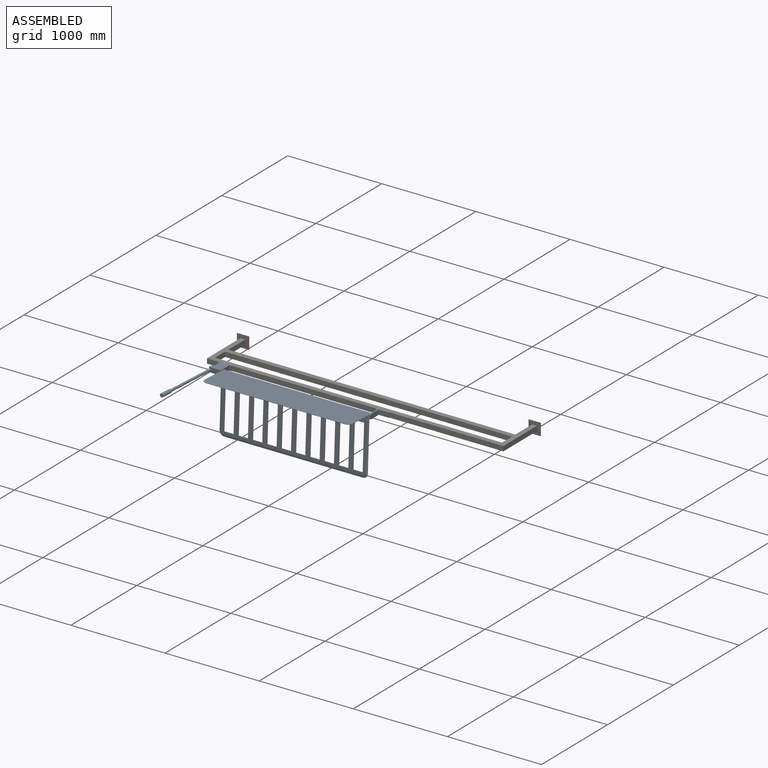
[diagram: assembled view]
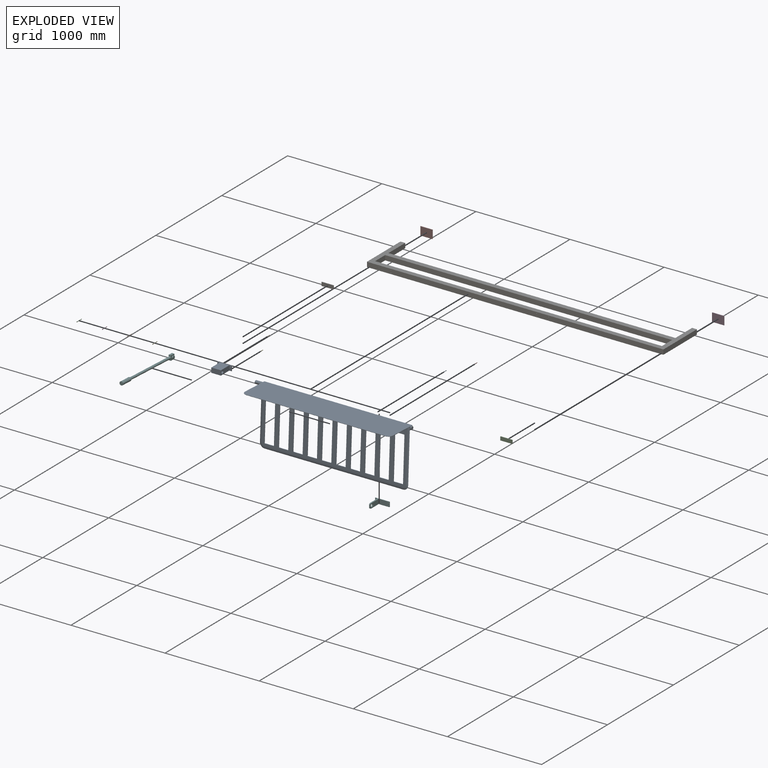
[diagram: exploded view]
GUIDED TOUR — MATED ASSEMBLY (Onshape document e687ba58ba35d8fcf52952bf, AutoMate assembly e687ba58ba35d8fcf52952bf_ee7e8cd8b29e687c3a9b3183_5fe067788b853b7fade614c0_default)

This assembly has 17 components, labeled P0..P16 below (a component is one placed occurrence of a part; the same part can appear more than once), held together by 21 mates. A mate is a constraint between two components; its type names the relative motion it leaves free:
  CYLINDRICAL — leaves both rotation about and translation along the listed axis free,
  FASTENED — locks the two components together rigidly (no relative motion),
  PLANAR — leaves sliding in the plane through the listed point (normal = the listed direction) and rotation about that normal free,
  SLIDER — leaves translation along the listed axis free.
Axis/direction vectors are unit vectors and 'through' points are millimeter coordinates, both in the assembly's world frame.

MATES
  1. FASTENED "Fastened 5": P11 <-> P6, direction (0.000, -1.000, 0.000) through (3124.20, 0.00, 50.80) mm
  2. CYLINDRICAL "Cylindrical 2": P6 <-> P13, axis (0.000, -1.000, 0.000) through (1803.40, -508.00, 12.70) mm
  3. FASTENED "Fastened 4": P10 <-> P11, direction (-1.000, 0.000, 0.000) through (3060.70, 0.00, 50.80) mm
  4. PLANAR "Planar 4": P0 <-> P13, direction (0.000, -1.000, 0.000) through (1803.40, -514.35, 12.70) mm
  5. PLANAR "Planar 3": P15 <-> P13, direction (0.000, 1.000, 0.000) through (1930.40, -514.35, 12.70) mm
  6. PLANAR "Planar 5": P1 <-> P13, direction (0.000, -1.000, 0.000) through (1803.40, -514.35, 38.10) mm
  7. PLANAR "Planar 11": P16 <-> P8, direction (1.000, 0.000, 0.000) through (241.30, -615.95, 25.40) mm
  8. CYLINDRICAL "Cylindrical 3": P8 <-> P16, axis (1.000, 0.000, 0.000) through (241.30, -615.95, 25.40) mm
  9. PLANAR "Planar 1": P6 <-> P8, direction (0.000, -1.000, 0.000) through (1575.67, -508.00, 25.40) mm
  10. CYLINDRICAL "Cylindrical 1": P13 <-> P6, axis (0.000, 1.000, 0.000) through (1930.40, -508.00, 38.10) mm
  11. PLANAR "Planar 10": P5 <-> P8, direction (1.000, 0.000, 0.000) through (139.70, -615.95, 25.40) mm
  12. PLANAR "Planar 7": P9 <-> P8, direction (0.000, -1.000, 0.000) through (127.00, -514.35, 12.70) mm
  13. PLANAR "Planar 6": P12 <-> P8, direction (0.000, -1.000, 0.000) through (254.00, -514.35, 12.70) mm
  14. PLANAR "Planar 9": P3 <-> P8, direction (0.000, -1.000, 0.000) through (254.00, -514.35, 38.10) mm
  15. SLIDER "Slider 1": P6 <-> P8, axis (0.000, -1.000, 0.000) through (254.00, -508.00, 38.10) mm
  16. FASTENED "Fastened 1": P7 <-> P14, direction (0.000, -1.000, 0.000) through (-38.10, 0.00, 50.80) mm
  17. FASTENED "Fastened 6": P5 <-> P16, direction (-1.000, 0.000, 0.000) through (114.30, -615.95, 25.40) mm
  18. PLANAR "Planar 2": P4 <-> P13, direction (0.000, 1.000, 0.000) through (1930.40, -514.35, 38.10) mm
  19. PLANAR "Planar 8": P2 <-> P8, direction (0.000, 1.000, 0.000) through (127.00, -514.35, 38.10) mm
  20. CYLINDRICAL "Cylindrical 4": P5 <-> P8, axis (-1.000, 0.000, 0.000) through (139.70, -615.95, 25.40) mm
  21. FASTENED "Fastened 3": P7 <-> P6, direction (0.000, -1.000, 0.000) through (-38.10, 0.00, -38.10) mm

ASSEMBLY ORDER
  1. P8 — the base component [order verified]
  2. P16 [order verified]
  3. P5 [order verified]
  4. P12 [order verified]
  5. P0 [order verified]
  6. P13 [order verified]
  7. P9 [order verified]
  8. P15 [order verified]
  9. P6 [order verified]
  10. P4 [order verified]
  11. P1 [order verified]
  12. P3 [order verified]
  13. P2 [order verified]
  14. P14 [order verified]
  15. P11 [order verified]
  16. P10 [order verified]
  17. P7 [order verified]
Order-tag legend:
  [order verified] — this step's position reverses a verified removal order: the component was checked to insert without passing through the ones already placed.

Of the 17 components, 12 carry the full construction recipe — the FeatureScript program that regenerates the part's solid from scratch; the rest are supplied as boundary geometry only.
Because this assembly has more than 12 components, the tour below covers the 12 most significant ones individually (every recipe-attached component first, then the largest by part volume), in assembly order; the remaining 5 are summarized together in a grouped section at the end.
Each toured component is shown spotlighted twice — in the assembled view, then in the exploded view, where a leader line traces a displaced component back to its assembled socket (saturated green if recipe-attached, orange if geometry-only; every other component desaturated gray) — followed by its recipe or geometry summary and the mates that hold it.
NOTE — this tour is split across 2 documents so each fits a 32k-token context. This is document 1: the component sections continue in the remaining 1 document, each repeating the header above.
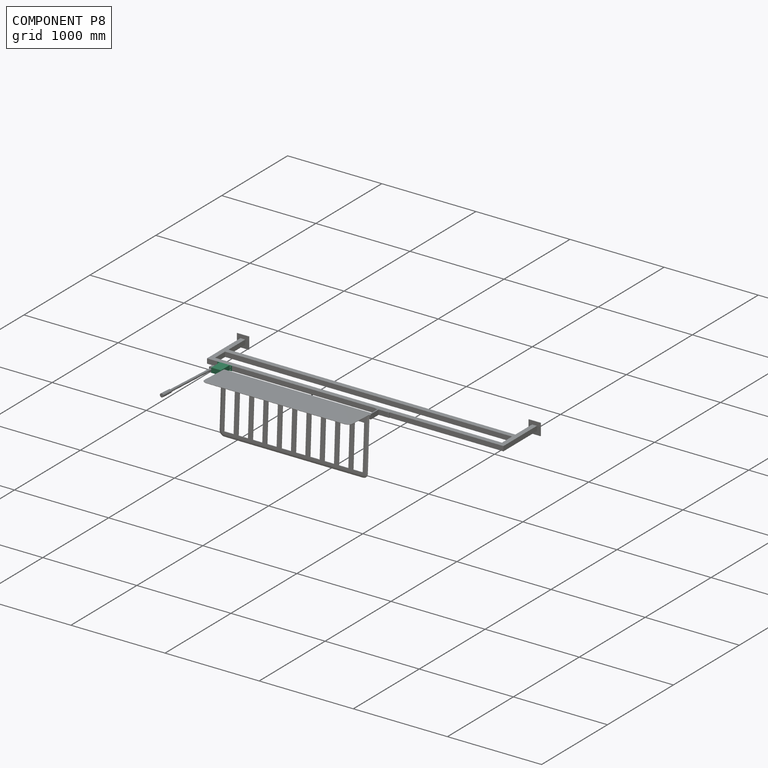
[diagram: component P8 — assembled]
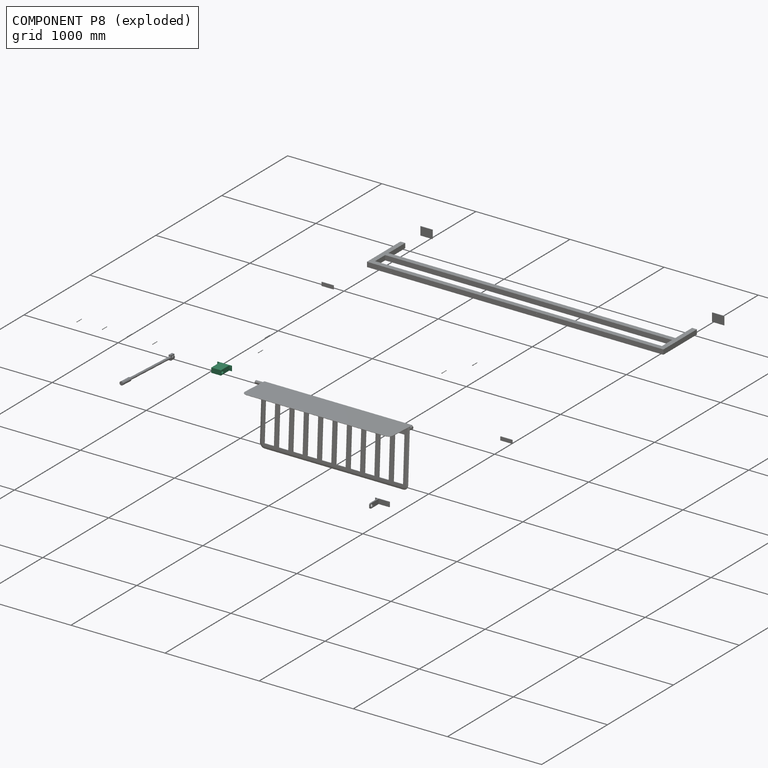
[diagram: component P8 — exploded]
COMPONENT P8 — recipe-attached (CADFS 00274264, mesh-verified: the recipe's output STEP matches this component's geometry to below the mesh-comparison resolution (tessellation chordal tolerance ~0.313 mm)).
Held by: PLANAR mate "Planar 11" to P16; CYLINDRICAL mate "Cylindrical 3" to P16; PLANAR mate "Planar 1" to P6; PLANAR mate "Planar 10" to P5; PLANAR mate "Planar 7" to P9; PLANAR mate "Planar 6" to P12; PLANAR mate "Planar 9" to P3; SLIDER mate "Slider 1" to P6; PLANAR mate "Planar 8" to P2; CYLINDRICAL mate "Cylindrical 4" to P5.
Construction recipe (FeatureScript — the CAD program that rebuilds this solid; sketch coordinates are in the units given by the * unit suffixes, e.g. mm):

FeatureScript 1511;
import(path : "onshape/std/geometry.fs", version : "1511.0");
import(path : "onshape/std/common.fs", version : "1511.0");
const mm = millimeter;
const VERTEX = EntityType.VERTEX;
const EDGE = EntityType.EDGE;
const FACE = EntityType.FACE;
const BODY = EntityType.BODY;
function v(x, y){return vector(x, y);}
function OD(order){return orderDisambiguation(order);}
function OSD(set){return originalSetDisambiguation(set);}
function TD(topology){return topologyDisambiguation(topology);}
function TDD(query){return trueDependencyDisambiguation(query);}
function sQuery(a, b, c) {return sketchEntityQuery(a, b, c);}

annotation { "Feature Type Name" : "Feature", "Feature Type Description" : "" }
export const myFeature = defineFeature(function(context is Context, id is Id, definition is map)
    precondition{}
    {
        {
            var Q0;
            Q0=qCreatedBy(makeId("Front.planeOp"),FACE);
            var sketch = newSketch(context, id + "F0", { "sketchPlane" : qUnion([Q0])});
            skLineSegment(sketch, "E0.bottom", {"start": v(0, 0) * mm, "end": v(152.4, 0) * mm});
            skLineSegment(sketch, "E0.top", {"start": v(0, 50.8) * mm, "end": v(152.4, 50.8) * mm});
            skLineSegment(sketch, "E0.left", {"start": v(0, 0) * mm, "end": v(0, 50.8) * mm});
            skLineSegment(sketch, "E0.right", {"start": v(152.4, 0) * mm, "end": v(152.4, 50.8) * mm});
            skSolve(sketch);
        }
        {
            var Q0;
            Q0=makeQuery(id+"F0.imprint","IMPRINT",FACE,{"disambiguationData":[TD([[makeQuery(id+"F0.imprint","IMPRINT",EDGE,{"derivedFrom":sQuery(id+"F0.wireOp",EDGE,"E0.bottom")}),1.0]])]});
            extrude(context, id + "F1", {"entities" : qUnion([Q0]), "depth" : 6.35 * mm});
        }
        {
            var Q0;
            Q0=makeQuery(id+"F1.opExtrude","CAP_FACE",FACE,{"disambiguationData":[OSD([sQuery(id+"F0.wireOp",EDGE,"E0.bottom"),sQuery(id+"F0.wireOp",EDGE,"E0.top"),sQuery(id+"F0.wireOp",EDGE,"E0.left"),sQuery(id+"F0.wireOp",EDGE,"E0.right")])],"isStart":false});
            var sketch = newSketch(context, id + "F2", { "sketchPlane" : qUnion([Q0])});
            skPoint(sketch, "E1", {"position": v(12.7, 38.1) * mm});
            skPoint(sketch, "E2", {"position": v(12.7, 12.7) * mm});
            skPoint(sketch, "E3", {"position": v(139.7, 38.1) * mm});
            skPoint(sketch, "E4", {"position": v(139.7, 12.7) * mm});
            skSolve(sketch);
        }
        {
            var Q0;
            Q0=sQuery(id+"F2.wireOp",VERTEX,"E1");
            var Q1;
            Q1=sQuery(id+"F2.wireOp",VERTEX,"E2");
            var Q2;
            Q2=sQuery(id+"F2.wireOp",VERTEX,"E3");
            var Q3;
            Q3=sQuery(id+"F2.wireOp",VERTEX,"E4");
            var Q4;
            Q4=makeQuery(id+"F1.opExtrude","SWEPT_BODY",BODY,{"disambiguationData":[OSD([sQuery(id+"F0.wireOp",EDGE,"E0.bottom"),sQuery(id+"F0.wireOp",EDGE,"E0.top"),sQuery(id+"F0.wireOp",EDGE,"E0.left"),sQuery(id+"F0.wireOp",EDGE,"E0.right")])]});
            hole(context, id + "F3", {"style" : HoleStyle.SIMPLE, "endStyle" : HoleEndStyle.THROUGH, "holeDiameter" : 6.35 * mm, "tappedDepth" : 12.7 * mm, "tapClearance" : 3, "locations" : qUnion([Q0, Q1, Q2, Q3]), "scope" : qUnion([Q4])});
        }
        {
            var Q0;
            Q0=makeQuery(id+"F1.opExtrude","CAP_FACE",FACE,{"disambiguationData":[OSD([sQuery(id+"F0.wireOp",EDGE,"E0.bottom"),sQuery(id+"F0.wireOp",EDGE,"E0.top"),sQuery(id+"F0.wireOp",EDGE,"E0.left"),sQuery(id+"F0.wireOp",EDGE,"E0.right")])],"isStart":false});
            var sketch = newSketch(context, id + "F4", { "sketchPlane" : qUnion([Q0])});
            skLineSegment(sketch, "E5.bottom", {"start": v(25.4, 50.8) * mm, "end": v(127, 50.8) * mm});
            skLineSegment(sketch, "E5.top", {"start": v(25.4, 0) * mm, "end": v(127, 0) * mm});
            skLineSegment(sketch, "E5.left", {"start": v(25.4, 50.8) * mm, "end": v(25.4, 0) * mm});
            skLineSegment(sketch, "E5.right", {"start": v(127, 50.8) * mm, "end": v(127, 0) * mm});
            skSolve(sketch);
        }
        {
            var Q0;
            Q0=makeQuery(id+"F4.imprint","IMPRINT",FACE,{"disambiguationData":[TD([[makeQuery(id+"F4.imprint","IMPRINT",EDGE,{"derivedFrom":sQuery(id+"F4.wireOp",EDGE,"E5.bottom")}),-1.0]])]});
            extrude(context, id + "F5", {"entities" : qUnion([Q0]), "operationType" : NewBodyOperationType.ADD, "depth" : 127 * mm});
        }
        {
            var Q0;
            Q0=makeQuery(id+"F5.opExtrude","SWEPT_FACE",FACE,{"disambiguationData":[OSD([sQuery(id+"F4.wireOp",EDGE,"E5.right")])]});
            var sketch = newSketch(context, id + "F6", { "sketchPlane" : qUnion([Q0])});
            skPoint(sketch, "E6", {"position": v(-107.95, 25.4) * mm});
            skSolve(sketch);
        }
        {
            var Q0;
            Q0=sQuery(id+"F6.wireOp",VERTEX,"E6");
            var Q1;
            Q1=makeQuery(id+"F1.opExtrude","SWEPT_BODY",BODY,{"disambiguationData":[OSD([sQuery(id+"F0.wireOp",EDGE,"E0.bottom"),sQuery(id+"F0.wireOp",EDGE,"E0.top"),sQuery(id+"F0.wireOp",EDGE,"E0.left"),sQuery(id+"F0.wireOp",EDGE,"E0.right")])]});
            hole(context, id + "F7", {"style" : HoleStyle.SIMPLE, "endStyle" : HoleEndStyle.BLIND, "holeDiameter" : 31.75 * mm, "holeDepth" : 25.4 * mm, "tappedDepth" : 12.7 * mm, "tapClearance" : 3, "locations" : qUnion([Q0]), "scope" : qUnion([Q1])});
        }
        {
            var Q0;
            Q0=makeQuery(id+"F5.opExtrude","SWEPT_FACE",FACE,{"disambiguationData":[OSD([sQuery(id+"F4.wireOp",EDGE,"E5.left")])]});
            var sketch = newSketch(context, id + "F8", { "sketchPlane" : qUnion([Q0])});
            skPoint(sketch, "E7", {"position": v(107.95, 25.4) * mm});
            skSolve(sketch);
        }
        {
            var Q0;
            Q0=sQuery(id+"F8.wireOp",VERTEX,"E7");
            var Q1;
            Q1=makeQuery(id+"F1.opExtrude","SWEPT_BODY",BODY,{"disambiguationData":[OSD([sQuery(id+"F0.wireOp",EDGE,"E0.bottom"),sQuery(id+"F0.wireOp",EDGE,"E0.top"),sQuery(id+"F0.wireOp",EDGE,"E0.left"),sQuery(id+"F0.wireOp",EDGE,"E0.right")])]});
            hole(context, id + "F9", {"style" : HoleStyle.SIMPLE, "endStyle" : HoleEndStyle.BLIND, "holeDiameter" : 31.75 * mm, "holeDepth" : 25.4 * mm, "tappedDepth" : 12.7 * mm, "tapClearance" : 3, "locations" : qUnion([Q0]), "scope" : qUnion([Q1])});
        }
    });
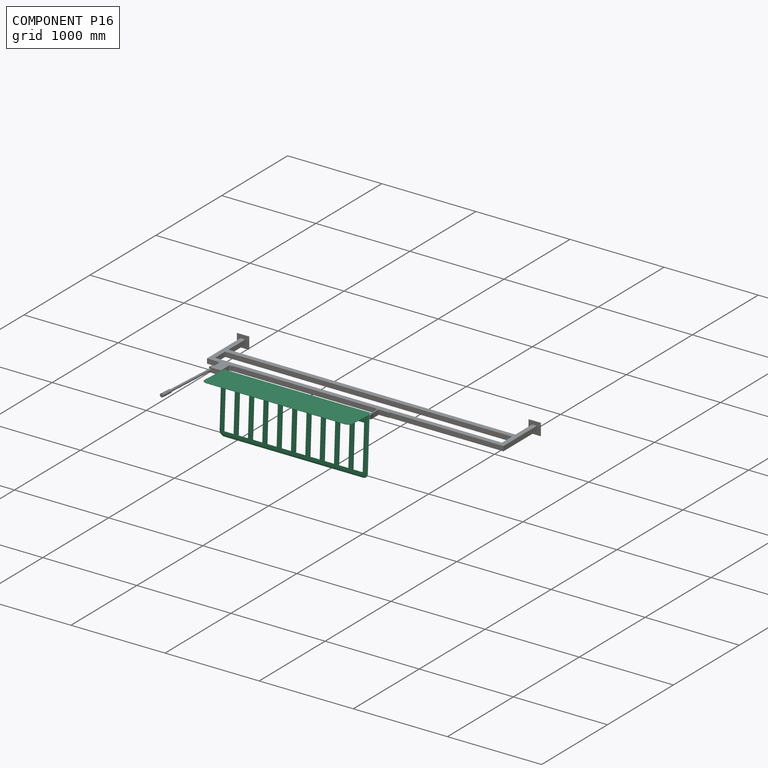
[diagram: component P16 — assembled]
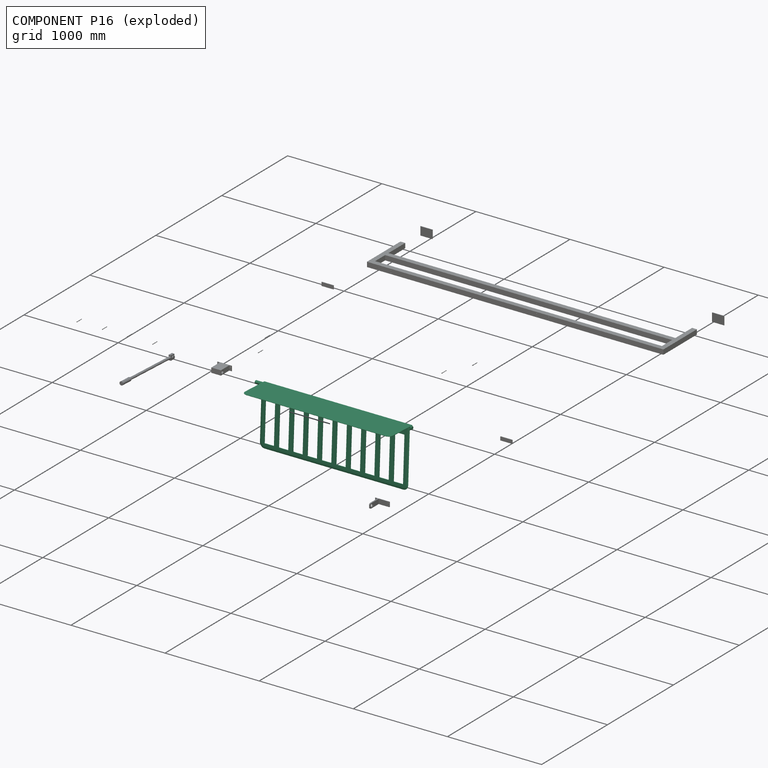
[diagram: component P16 — exploded]
COMPONENT P16 — recipe-attached (CADFS 00274266, mesh-verified: the recipe's output STEP matches this component's geometry to below the mesh-comparison resolution (tessellation chordal tolerance ~2.71 mm)).
Held by: PLANAR mate "Planar 11" to P8; CYLINDRICAL mate "Cylindrical 3" to P8; FASTENED mate "Fastened 6" to P5.
Construction recipe (FeatureScript — the CAD program that rebuilds this solid; sketch coordinates are in the units given by the * unit suffixes, e.g. mm):

FeatureScript 1511;
import(path : "onshape/std/geometry.fs", version : "1511.0");
import(path : "onshape/std/common.fs", version : "1511.0");
const mm = millimeter;
const VERTEX = EntityType.VERTEX;
const EDGE = EntityType.EDGE;
const FACE = EntityType.FACE;
const BODY = EntityType.BODY;
function v(x, y){return vector(x, y);}
function OD(order){return orderDisambiguation(order);}
function OSD(set){return originalSetDisambiguation(set);}
function TD(topology){return topologyDisambiguation(topology);}
function TDD(query){return trueDependencyDisambiguation(query);}
function sQuery(a, b, c) {return sketchEntityQuery(a, b, c);}

annotation { "Feature Type Name" : "Feature", "Feature Type Description" : "" }
export const myFeature = defineFeature(function(context is Context, id is Id, definition is map)
    precondition{}
    {
        {
            var Q0;
            Q0=qCreatedBy(makeId("Front.planeOp"),FACE);
            var sketch = newSketch(context, id + "F0", { "sketchPlane" : qUnion([Q0])});
            skLineSegment(sketch, "E0.bottom", {"start": v(0, 0) * mm, "end": v(609.6, 0) * mm});
            skLineSegment(sketch, "E0.top", {"start": v(0, 6.35) * mm, "end": v(609.6, 6.35) * mm});
            skLineSegment(sketch, "E0.left", {"start": v(0, 0) * mm, "end": v(0, 6.35) * mm});
            skLineSegment(sketch, "E0.right", {"start": v(609.6, 0) * mm, "end": v(609.6, 6.35) * mm});
            skLineSegment(sketch, "E1.bottom", {"start": v(0, 0) * mm, "end": v(6.35, 0) * mm});
            skLineSegment(sketch, "E1.top", {"start": v(0, 304.8) * mm, "end": v(6.35, 304.8) * mm});
            skLineSegment(sketch, "E1.left", {"start": v(0, 0) * mm, "end": v(0, 304.8) * mm});
            skLineSegment(sketch, "E1.right", {"start": v(6.35, 0) * mm, "end": v(6.35, 304.8) * mm});
            skSolve(sketch);
        }
        {
            var Q0;
            {var subQ5=sQuery(id+"F0.wireOp",EDGE,"E1.top");Q0=makeQuery(id+"F0.imprint","IMPRINT",FACE,{"disambiguationData":[TD([[makeQuery(id+"F0.imprint","IMPRINT",EDGE,{"derivedFrom":subQ5}),-1.0]])]});}
            var Q1;
            {var subQ0=sQuery(id+"F0.wireOp",EDGE,"E0.bottom");Q1=makeQuery(id+"F0.imprint","IMPRINT",FACE,{"disambiguationData":[TD([[makeQuery(id+"F0.imprint","IMPRINT",EDGE,{"derivedFrom":subQ0}),1.0]])]});}
            var Q2;
            {var subQ5=sQuery(id+"F0.wireOp",EDGE,"E1.bottom");Q2=makeQuery(id+"F0.imprint","IMPRINT",FACE,{"disambiguationData":[TD([[makeQuery(id+"F0.imprint","IMPRINT",EDGE,{"derivedFrom":subQ5}),1.0]])]});}
            extrude(context, id + "F1", {"entities" : qUnion([Q0, Q1, Q2]), "depth" : 1574.8 * mm});
        }
        {
            var Q0;
            Q0=makeQuery(id+"F1.opExtrude","CAP_FACE",FACE,{"disambiguationData":[OSD([sQuery(id+"F0.wireOp",EDGE,"E0.bottom"),sQuery(id+"F0.wireOp",EDGE,"E0.top"),sQuery(id+"F0.wireOp",EDGE,"E0.right"),sQuery(id+"F0.wireOp",EDGE,"E1.bottom"),sQuery(id+"F0.wireOp",EDGE,"E1.top"),sQuery(id+"F0.wireOp",EDGE,"E1.left"),sQuery(id+"F0.wireOp",EDGE,"E1.right")])],"isStart":false});
            var sketch = newSketch(context, id + "F2", { "sketchPlane" : qUnion([Q0])});
            skLineSegment(sketch, "E2.bottom", {"start": v(0, 0) * mm, "end": v(38.1, 0) * mm});
            skLineSegment(sketch, "E2.top", {"start": v(0, -38.1) * mm, "end": v(38.1, -38.1) * mm});
            skLineSegment(sketch, "E2.left", {"start": v(0, 0) * mm, "end": v(0, -38.1) * mm});
            skLineSegment(sketch, "E2.right", {"start": v(38.1, 0) * mm, "end": v(38.1, -38.1) * mm});
            skSolve(sketch);
        }
        {
            var Q0;
            Q0=makeQuery(id+"F2.imprint","IMPRINT",FACE,{"disambiguationData":[TD([[makeQuery(id+"F2.imprint","IMPRINT",EDGE,{"derivedFrom":sQuery(id+"F2.wireOp",EDGE,"E2.bottom")}),-1.0]])]});
            extrude(context, id + "F3", {"entities" : qUnion([Q0]), "operationType" : NewBodyOperationType.ADD, "oppositeDirection" : true, "depth" : 1574.8 * mm});
        }
        {
            var Q0;
            Q0=makeQuery(id+"F3.boolean.opBoolean","MERGE",FACE,{"derivedFrom":[makeQuery(id+"F1.opExtrude","CAP_FACE",FACE,{"disambiguationData":[OSD([sQuery(id+"F0.wireOp",EDGE,"E0.bottom"),sQuery(id+"F0.wireOp",EDGE,"E0.top"),sQuery(id+"F0.wireOp",EDGE,"E0.right"),sQuery(id+"F0.wireOp",EDGE,"E1.bottom"),sQuery(id+"F0.wireOp",EDGE,"E1.top"),sQuery(id+"F0.wireOp",EDGE,"E1.left"),sQuery(id+"F0.wireOp",EDGE,"E1.right")])],"isStart":false}),makeQuery(id+"F3.opExtrude","CAP_FACE",FACE,{"disambiguationData":[OSD([sQuery(id+"F2.wireOp",EDGE,"TUILDfYx-NHmr-r6Di-cHKC-nHDSRs35YgXG.bottom"),sQuery(id+"F2.wireOp",EDGE,"TUILDfYx-NHmr-r6Di-cHKC-nHDSRs35YgXG.top"),sQuery(id+"F2.wireOp",EDGE,"TUILDfYx-NHmr-r6Di-cHKC-nHDSRs35YgXG.left"),sQuery(id+"F2.wireOp",EDGE,"TUILDfYx-NHmr-r6Di-cHKC-nHDSRs35YgXG.right")])],"isStart":true})]});
            var sketch = newSketch(context, id + "F4", { "sketchPlane" : qUnion([Q0])});
            skPoint(sketch, "E3", {"position": v(19.05, -19.05) * mm});
            skCircle(sketch, "E4", {"center": v(19.05, -19.05) * mm, "radius": 15.88 * mm});
            skSolve(sketch);
        }
        {
            var Q0;
            Q0=makeQuery(id+"F4.imprint","IMPRINT",FACE,{"disambiguationData":[TD([[makeQuery(id+"F4.imprint","IMPRINT",EDGE,{"derivedFrom":sQuery(id+"F4.wireOp",EDGE,"E4")}),1.0]])]});
            extrude(context, id + "F5", {"entities" : qUnion([Q0]), "operationType" : NewBodyOperationType.ADD, "depth" : 76.2 * mm});
        }
        {
            var Q0;
            Q0=makeQuery(id+"F3.boolean.opBoolean","MERGE",FACE,{"derivedFrom":[makeQuery(id+"F1.opExtrude","CAP_FACE",FACE,{"disambiguationData":[OSD([sQuery(id+"F0.wireOp",EDGE,"E0.bottom"),sQuery(id+"F0.wireOp",EDGE,"E0.top"),sQuery(id+"F0.wireOp",EDGE,"E0.right"),sQuery(id+"F0.wireOp",EDGE,"E1.bottom"),sQuery(id+"F0.wireOp",EDGE,"E1.top"),sQuery(id+"F0.wireOp",EDGE,"E1.left"),sQuery(id+"F0.wireOp",EDGE,"E1.right")])],"isStart":true}),makeQuery(id+"F3.opExtrude","CAP_FACE",FACE,{"disambiguationData":[OSD([sQuery(id+"F2.wireOp",EDGE,"TUILDfYx-NHmr-r6Di-cHKC-nHDSRs35YgXG.bottom"),sQuery(id+"F2.wireOp",EDGE,"TUILDfYx-NHmr-r6Di-cHKC-nHDSRs35YgXG.top"),sQuery(id+"F2.wireOp",EDGE,"TUILDfYx-NHmr-r6Di-cHKC-nHDSRs35YgXG.left"),sQuery(id+"F2.wireOp",EDGE,"TUILDfYx-NHmr-r6Di-cHKC-nHDSRs35YgXG.right")])],"isStart":false})]});
            var sketch = newSketch(context, id + "F6", { "sketchPlane" : qUnion([Q0])});
            skCircle(sketch, "E5", {"center": v(-19.05, -19.05) * mm, "radius": 15.88 * mm});
            skSolve(sketch);
        }
        {
            var Q0;
            Q0=makeQuery(id+"F6.imprint","IMPRINT",FACE,{"disambiguationData":[TD([[makeQuery(id+"F6.imprint","IMPRINT",EDGE,{"derivedFrom":sQuery(id+"F6.wireOp",EDGE,"E5")}),1.0]])]});
            extrude(context, id + "F7", {"entities" : qUnion([Q0]), "operationType" : NewBodyOperationType.ADD, "depth" : 12.7 * mm});
        }
        {
            var Q0;
            Q0=makeQuery(id+"F1.opExtrude","SWEPT_FACE",FACE,{"disambiguationData":[OSD([sQuery(id+"F0.wireOp",EDGE,"E0.bottom"),sQuery(id+"F0.wireOp",EDGE,"E1.bottom")])]});
            var sketch = newSketch(context, id + "F8", { "sketchPlane" : qUnion([Q0])});
            skLineSegment(sketch, "E6.bottom", {"start": v(88.9, 1524) * mm, "end": v(558.8, 1524) * mm});
            skLineSegment(sketch, "E6.top", {"start": v(88.9, 1422.4) * mm, "end": v(558.8, 1422.4) * mm});
            skLineSegment(sketch, "E6.left", {"start": v(88.9, 1524) * mm, "end": v(88.9, 1422.4) * mm});
            skLineSegment(sketch, "E6.right", {"start": v(558.8, 1524) * mm, "end": v(558.8, 1422.4) * mm});
            skLineSegment(sketch, "E7.bottom", {"start": v(88.9, 1371.6) * mm, "end": v(558.8, 1371.6) * mm});
            skLineSegment(sketch, "E7.top", {"start": v(88.9, 1270) * mm, "end": v(558.8, 1270) * mm});
            skLineSegment(sketch, "E7.left", {"start": v(88.9, 1371.6) * mm, "end": v(88.9, 1270) * mm});
            skLineSegment(sketch, "E7.right", {"start": v(558.8, 1371.6) * mm, "end": v(558.8, 1270) * mm});
            skLineSegment(sketch, "E8.bottom", {"start": v(88.9, 1219.2) * mm, "end": v(558.8, 1219.2) * mm});
            skLineSegment(sketch, "E8.top", {"start": v(88.9, 1117.6) * mm, "end": v(558.8, 1117.6) * mm});
            skLineSegment(sketch, "E8.left", {"start": v(88.9, 1219.2) * mm, "end": v(88.9, 1117.6) * mm});
            skLineSegment(sketch, "E8.right", {"start": v(558.8, 1219.2) * mm, "end": v(558.8, 1117.6) * mm});
            skLineSegment(sketch, "E9.bottom", {"start": v(558.8, 1066.8) * mm, "end": v(88.9, 1066.8) * mm});
            skLineSegment(sketch, "E9.top", {"start": v(558.8, 965.2) * mm, "end": v(88.9, 965.2) * mm});
            skLineSegment(sketch, "E9.left", {"start": v(558.8, 1066.8) * mm, "end": v(558.8, 965.2) * mm});
            skLineSegment(sketch, "E9.right", {"start": v(88.9, 1066.8) * mm, "end": v(88.9, 965.2) * mm});
            skLineSegment(sketch, "E10.bottom", {"start": v(558.8, 914.4) * mm, "end": v(88.9, 914.4) * mm});
            skLineSegment(sketch, "E10.top", {"start": v(558.8, 812.8) * mm, "end": v(88.9, 812.8) * mm});
            skLineSegment(sketch, "E10.left", {"start": v(558.8, 914.4) * mm, "end": v(558.8, 812.8) * mm});
            skLineSegment(sketch, "E10.right", {"start": v(88.9, 914.4) * mm, "end": v(88.9, 812.8) * mm});
            skLineSegment(sketch, "E11.bottom", {"start": v(558.8, 152.4) * mm, "end": v(88.9, 152.4) * mm});
            skLineSegment(sketch, "E11.top", {"start": v(558.8, 50.8) * mm, "end": v(88.9, 50.8) * mm});
            skLineSegment(sketch, "E11.left", {"start": v(558.8, 152.4) * mm, "end": v(558.8, 50.8) * mm});
            skLineSegment(sketch, "E11.right", {"start": v(88.9, 152.4) * mm, "end": v(88.9, 50.8) * mm});
            skLineSegment(sketch, "E12.bottom", {"start": v(88.9, 203.2) * mm, "end": v(558.8, 203.2) * mm});
            skLineSegment(sketch, "E12.top", {"start": v(88.9, 304.8) * mm, "end": v(558.8, 304.8) * mm});
            skLineSegment(sketch, "E12.left", {"start": v(88.9, 203.2) * mm, "end": v(88.9, 304.8) * mm});
            skLineSegment(sketch, "E12.right", {"start": v(558.8, 203.2) * mm, "end": v(558.8, 304.8) * mm});
            skLineSegment(sketch, "E13.bottom", {"start": v(558.8, 355.6) * mm, "end": v(88.9, 355.6) * mm});
            skLineSegment(sketch, "E13.top", {"start": v(558.8, 457.2) * mm, "end": v(88.9, 457.2) * mm});
            skLineSegment(sketch, "E13.left", {"start": v(558.8, 355.6) * mm, "end": v(558.8, 457.2) * mm});
            skLineSegment(sketch, "E13.right", {"start": v(88.9, 355.6) * mm, "end": v(88.9, 457.2) * mm});
            skLineSegment(sketch, "E14.bottom", {"start": v(558.8, 508) * mm, "end": v(88.9, 508) * mm});
            skLineSegment(sketch, "E14.top", {"start": v(558.8, 609.6) * mm, "end": v(88.9, 609.6) * mm});
            skLineSegment(sketch, "E14.left", {"start": v(558.8, 508) * mm, "end": v(558.8, 609.6) * mm});
            skLineSegment(sketch, "E14.right", {"start": v(88.9, 508) * mm, "end": v(88.9, 609.6) * mm});
            skLineSegment(sketch, "E15.bottom", {"start": v(558.8, 660.4) * mm, "end": v(88.9, 660.4) * mm});
            skLineSegment(sketch, "E15.top", {"start": v(558.8, 762) * mm, "end": v(88.9, 762) * mm});
            skLineSegment(sketch, "E15.left", {"start": v(558.8, 660.4) * mm, "end": v(558.8, 762) * mm});
            skLineSegment(sketch, "E15.right", {"start": v(88.9, 660.4) * mm, "end": v(88.9, 762) * mm});
            skSolve(sketch);
        }
        {
            var Q0;
            Q0=makeQuery(id+"F8.imprint","IMPRINT",FACE,{"disambiguationData":[TD([[makeQuery(id+"F8.imprint","IMPRINT",EDGE,{"derivedFrom":sQuery(id+"F8.wireOp",EDGE,"E6.bottom")}),-1.0]])]});
            var Q1;
            Q1=makeQuery(id+"F8.imprint","IMPRINT",FACE,{"disambiguationData":[TD([[makeQuery(id+"F8.imprint","IMPRINT",EDGE,{"derivedFrom":sQuery(id+"F8.wireOp",EDGE,"E7.bottom")}),-1.0]])]});
            var Q2;
            Q2=makeQuery(id+"F8.imprint","IMPRINT",FACE,{"disambiguationData":[TD([[makeQuery(id+"F8.imprint","IMPRINT",EDGE,{"derivedFrom":sQuery(id+"F8.wireOp",EDGE,"E8.bottom")}),-1.0]])]});
            var Q3;
            Q3=makeQuery(id+"F8.imprint","IMPRINT",FACE,{"disambiguationData":[TD([[makeQuery(id+"F8.imprint","IMPRINT",EDGE,{"derivedFrom":sQuery(id+"F8.wireOp",EDGE,"E9.bottom")}),1.0]])]});
            var Q4;
            Q4=makeQuery(id+"F8.imprint","IMPRINT",FACE,{"disambiguationData":[TD([[makeQuery(id+"F8.imprint","IMPRINT",EDGE,{"derivedFrom":sQuery(id+"F8.wireOp",EDGE,"E10.bottom")}),1.0]])]});
            var Q5;
            Q5=makeQuery(id+"F8.imprint","IMPRINT",FACE,{"disambiguationData":[TD([[makeQuery(id+"F8.imprint","IMPRINT",EDGE,{"derivedFrom":sQuery(id+"F8.wireOp",EDGE,"E15.bottom")}),-1.0]])]});
            var Q6;
            Q6=makeQuery(id+"F8.imprint","IMPRINT",FACE,{"disambiguationData":[TD([[makeQuery(id+"F8.imprint","IMPRINT",EDGE,{"derivedFrom":sQuery(id+"F8.wireOp",EDGE,"E14.bottom")}),-1.0]])]});
            var Q7;
            Q7=makeQuery(id+"F8.imprint","IMPRINT",FACE,{"disambiguationData":[TD([[makeQuery(id+"F8.imprint","IMPRINT",EDGE,{"derivedFrom":sQuery(id+"F8.wireOp",EDGE,"E13.bottom")}),-1.0]])]});
            var Q8;
            Q8=makeQuery(id+"F8.imprint","IMPRINT",FACE,{"disambiguationData":[TD([[makeQuery(id+"F8.imprint","IMPRINT",EDGE,{"derivedFrom":sQuery(id+"F8.wireOp",EDGE,"E12.bottom")}),1.0]])]});
            var Q9;
            Q9=makeQuery(id+"F8.imprint","IMPRINT",FACE,{"disambiguationData":[TD([[makeQuery(id+"F8.imprint","IMPRINT",EDGE,{"derivedFrom":sQuery(id+"F8.wireOp",EDGE,"E11.bottom")}),1.0]])]});
            extrude(context, id + "F9", {"entities" : qUnion([Q0, Q1, Q2, Q3, Q4, Q5, Q6, Q7, Q8, Q9]), "operationType" : NewBodyOperationType.REMOVE, "oppositeDirection" : true, "depth" : 25.4 * mm});
        }
        {
            var Q0;
            Q0=makeQuery(id+"F1.opExtrude","CAP_EDGE",EDGE,{"disambiguationData":[OSD([sQuery(id+"F0.wireOp",EDGE,"E0.right")])],"isStart":true});
            var Q1;
            Q1=makeQuery(id+"F1.opExtrude","CAP_EDGE",EDGE,{"disambiguationData":[OSD([sQuery(id+"F0.wireOp",EDGE,"E0.right")])],"isStart":false});
            var Q2;
            Q2=makeQuery(id+"F1.opExtrude","CAP_EDGE",EDGE,{"disambiguationData":[OSD([sQuery(id+"F0.wireOp",EDGE,"E1.top")])],"isStart":false});
            var Q3;
            Q3=makeQuery(id+"F1.opExtrude","CAP_EDGE",EDGE,{"disambiguationData":[OSD([sQuery(id+"F0.wireOp",EDGE,"E1.top")])],"isStart":true});
            fillet(context, id + "F10", {"entities" : qUnion([Q0, Q1, Q2, Q3]), "radius" : 50.8 * mm, "tangentPropagation" : true, "allowEdgeOverflow" : false});
        }
        {
            var Q0;
            Q0=makeQuery(id+"F1.opExtrude","SWEPT_EDGE",EDGE,{"disambiguationData":[OSD([sQuery(id+"F0.wireOp",EDGE,"E0.top"),sQuery(id+"F0.wireOp",EDGE,"E0.right")])]});
            fillet(context, id + "F11", {"entities" : qUnion([Q0]), "radius" : 50.8 * mm, "tangentPropagation" : true, "allowEdgeOverflow" : false});
        }
        {
            var Q0;
            Q0=makeQuery(id+"F1.opExtrude","SWEPT_EDGE",EDGE,{"disambiguationData":[OSD([sQuery(id+"F0.wireOp",EDGE,"E1.top"),sQuery(id+"F0.wireOp",EDGE,"E1.right")])]});
            var Q1;
            Q1=makeQuery(id+"F1.opExtrude","SWEPT_EDGE",EDGE,{"disambiguationData":[OSD([sQuery(id+"F0.wireOp",EDGE,"E1.top"),sQuery(id+"F0.wireOp",EDGE,"E1.left")])]});
            fillet(context, id + "F12", {"entities" : qUnion([Q0, Q1]), "radius" : 3.17 * mm, "tangentPropagation" : true, "allowEdgeOverflow" : false});
        }
    });
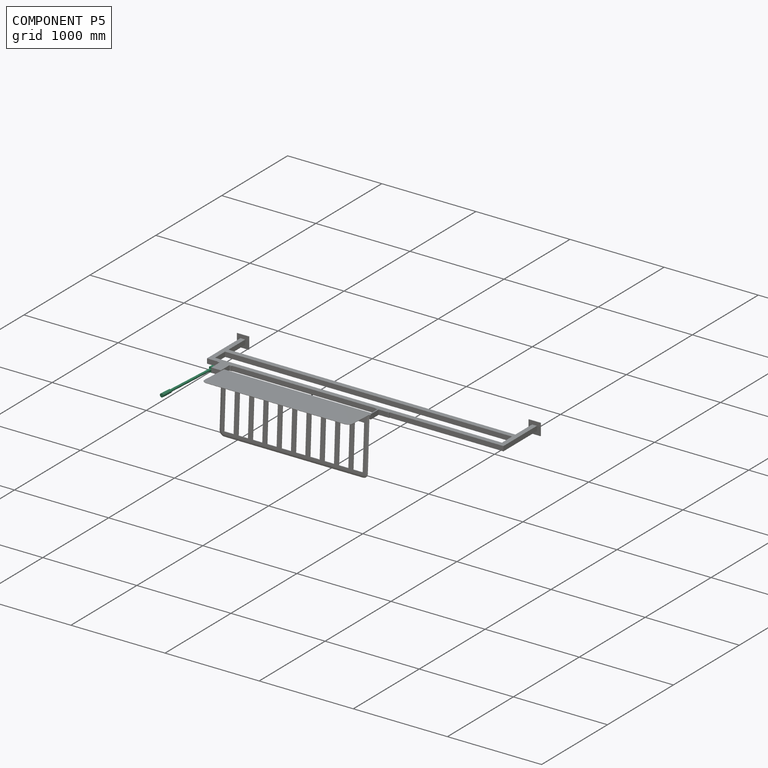
[diagram: component P5 — assembled]
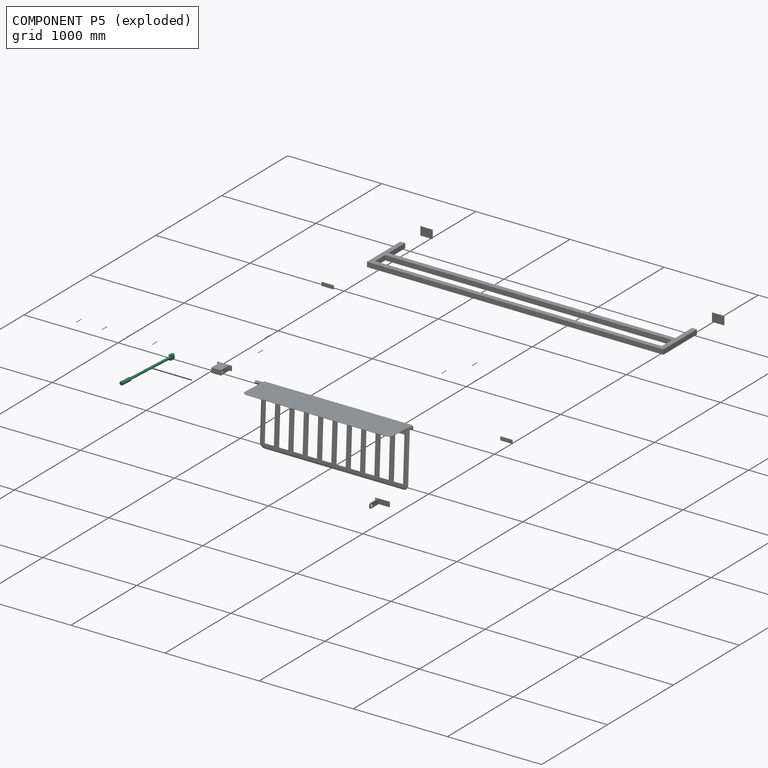
[diagram: component P5 — exploded]
COMPONENT P5 — recipe-attached (CADFS 00274265, mesh-verified: the recipe's output STEP matches this component's geometry to below the mesh-comparison resolution (tessellation chordal tolerance ~1.19 mm)).
Held by: PLANAR mate "Planar 10" to P8; FASTENED mate "Fastened 6" to P16; CYLINDRICAL mate "Cylindrical 4" to P8.
Construction recipe (FeatureScript — the CAD program that rebuilds this solid; sketch coordinates are in the units given by the * unit suffixes, e.g. mm):

FeatureScript 1511;
import(path : "onshape/std/geometry.fs", version : "1511.0");
import(path : "onshape/std/common.fs", version : "1511.0");
const mm = millimeter;
const VERTEX = EntityType.VERTEX;
const EDGE = EntityType.EDGE;
const FACE = EntityType.FACE;
const BODY = EntityType.BODY;
function v(x, y){return vector(x, y);}
function OD(order){return orderDisambiguation(order);}
function OSD(set){return originalSetDisambiguation(set);}
function TD(topology){return topologyDisambiguation(topology);}
function TDD(query){return trueDependencyDisambiguation(query);}
function sQuery(a, b, c) {return sketchEntityQuery(a, b, c);}

annotation { "Feature Type Name" : "Feature", "Feature Type Description" : "" }
export const myFeature = defineFeature(function(context is Context, id is Id, definition is map)
    precondition{}
    {
        {
            var Q0;
            Q0=qCreatedBy(makeId("Front.planeOp"),FACE);
            var sketch = newSketch(context, id + "F0", { "sketchPlane" : qUnion([Q0])});
            skCircle(sketch, "E0", {"center": v(0, 0) * mm, "radius": 12.7 * mm});
            skSolve(sketch);
        }
        {
            var Q0;
            Q0=makeQuery(id+"F0.imprint","IMPRINT",FACE,{"disambiguationData":[TD([[makeQuery(id+"F0.imprint","IMPRINT",EDGE,{"derivedFrom":sQuery(id+"F0.wireOp",EDGE,"E0")}),1.0]])]});
            extrude(context, id + "F1", {"entities" : qUnion([Q0]), "depth" : 609.6 * mm});
        }
        {
            var Q0;
            Q0=makeQuery(id+"F1.opExtrude","CAP_FACE",FACE,{"disambiguationData":[OSD([sQuery(id+"F0.wireOp",EDGE,"E0")])],"isStart":false});
            var sketch = newSketch(context, id + "F2", { "sketchPlane" : qUnion([Q0])});
            skCircle(sketch, "E1", {"center": v(0, 0) * mm, "radius": 19.05 * mm});
            skSolve(sketch);
        }
        {
            var Q0;
            Q0=makeQuery(id+"F2.imprint","IMPRINT",FACE,{"disambiguationData":[TD([[makeQuery(id+"F2.imprint","IMPRINT",EDGE,{"derivedFrom":sQuery(id+"F2.wireOp",EDGE,"E1")}),1.0]])]});
            var Q1;
            Q1=makeQuery(id+"F2.imprint","IMPRINT",FACE,{"disambiguationData":[TD([[makeQuery(id+"F2.imprint","IMPRINT",EDGE,{"derivedFrom":makeQuery(id+"F1.opExtrude","CAP_EDGE",EDGE,{"disambiguationData":[OSD([sQuery(id+"F0.wireOp",EDGE,"E0")])],"isStart":false})}),1.0]])]});
            extrude(context, id + "F3", {"entities" : qUnion([Q0, Q1]), "operationType" : NewBodyOperationType.ADD, "depth" : 127 * mm});
        }
        {
            var Q0;
            Q0=qCreatedBy(makeId("Right.planeOp"),FACE);
            var sketch = newSketch(context, id + "F4", { "sketchPlane" : qUnion([Q0])});
            skLineSegment(sketch, "E2.bottom", {"start": v(0, -25.4) * mm, "end": v(50.8, -25.4) * mm});
            skLineSegment(sketch, "E2.top", {"start": v(0, 25.4) * mm, "end": v(50.8, 25.4) * mm});
            skLineSegment(sketch, "E2.left", {"start": v(0, -25.4) * mm, "end": v(0, 25.4) * mm});
            skLineSegment(sketch, "E2.right", {"start": v(50.8, -25.4) * mm, "end": v(50.8, 25.4) * mm});
            skSolve(sketch);
        }
        {
            var Q0;
            Q0=makeQuery(id+"F4.imprint","IMPRINT",FACE,{"disambiguationData":[TD([[makeQuery(id+"F4.imprint","IMPRINT",EDGE,{"derivedFrom":sQuery(id+"F4.wireOp",EDGE,"E2.bottom")}),1.0]])]});
            extrude(context, id + "F5", {"entities" : qUnion([Q0]), "operationType" : NewBodyOperationType.ADD, "endBound" : BoundingType.SYMMETRIC, "depth" : 25.4 * mm});
        }
        {
            var Q0;
            Q0=makeQuery(id+"F5.opExtrude","CAP_FACE",FACE,{"disambiguationData":[OSD([sQuery(id+"F4.wireOp",EDGE,"E2.bottom"),sQuery(id+"F4.wireOp",EDGE,"E2.top"),sQuery(id+"F4.wireOp",EDGE,"E2.left"),sQuery(id+"F4.wireOp",EDGE,"E2.right")])],"isStart":true});
            var sketch = newSketch(context, id + "F6", { "sketchPlane" : qUnion([Q0])});
            skCircle(sketch, "E3", {"center": v(-25.4, 0) * mm, "radius": 15.88 * mm});
            skSolve(sketch);
        }
        {
            var Q0;
            Q0=makeQuery(id+"F6.imprint","IMPRINT",FACE,{"disambiguationData":[TD([[makeQuery(id+"F6.imprint","IMPRINT",EDGE,{"derivedFrom":sQuery(id+"F6.wireOp",EDGE,"E3")}),1.0]])]});
            extrude(context, id + "F7", {"entities" : qUnion([Q0]), "operationType" : NewBodyOperationType.ADD, "depth" : 12.7 * mm});
        }
    });
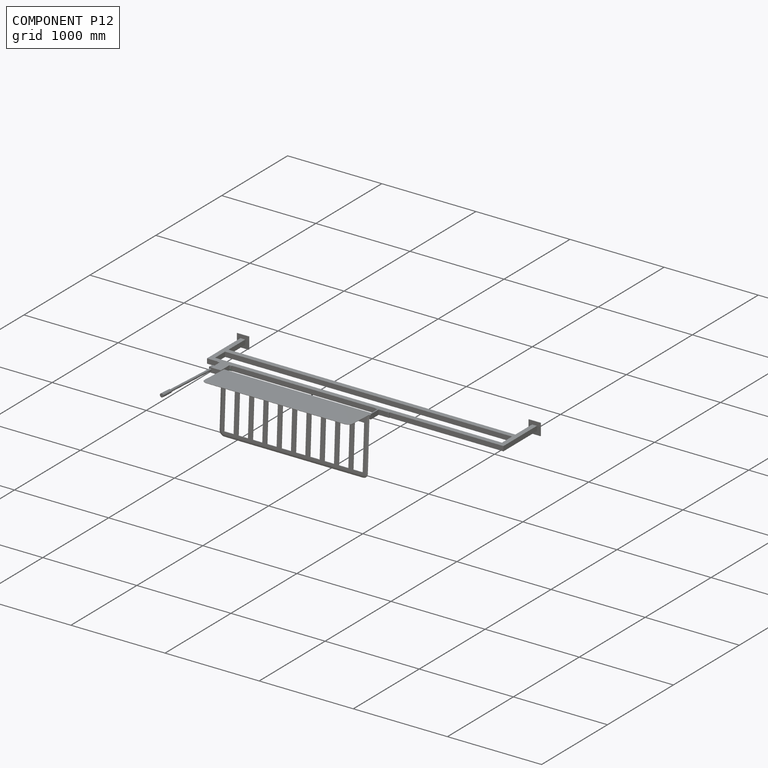
[diagram: component P12 — assembled]
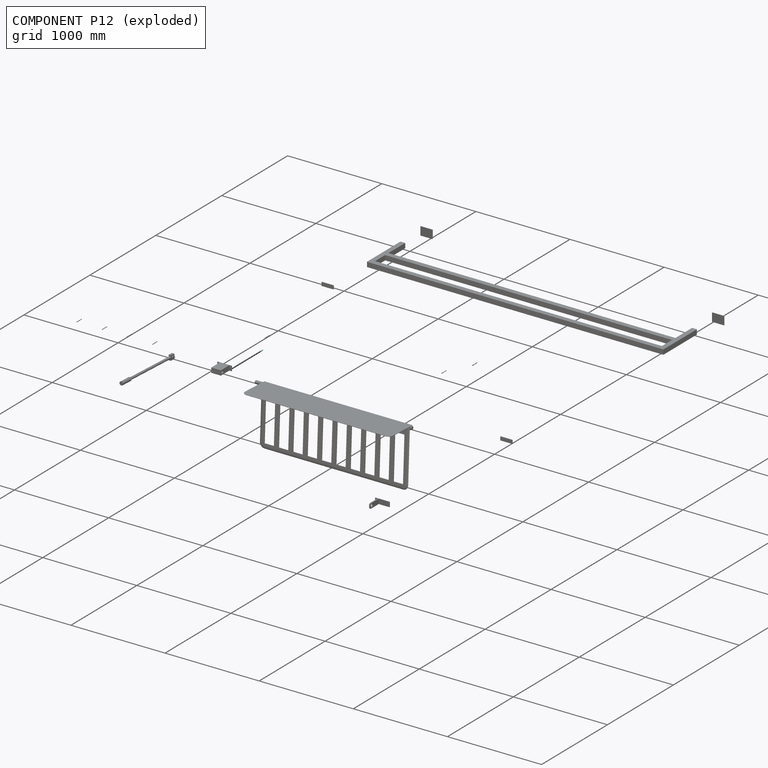
[diagram: component P12 — exploded]
COMPONENT P12 — same part as P0 (CADFS 00274267); its construction recipe is shown at P0.
Held by: PLANAR mate "Planar 6" to P8.
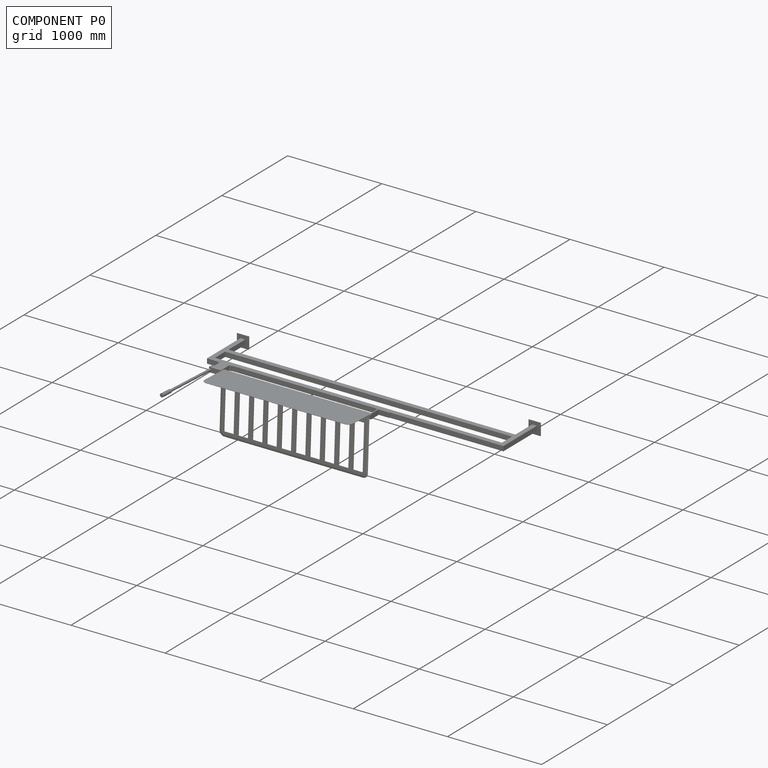
[diagram: component P0 — assembled]
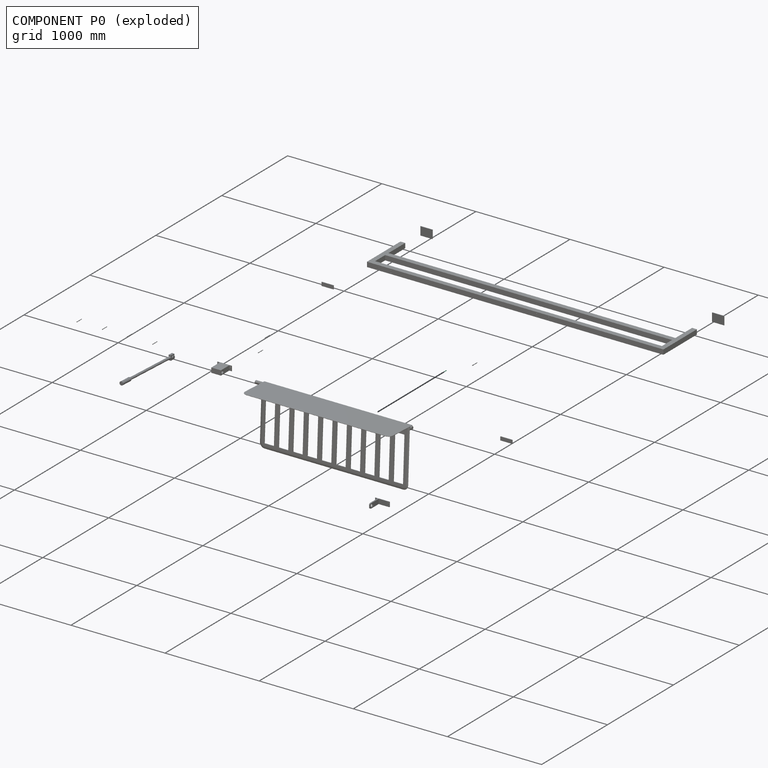
[diagram: component P0 — exploded]
COMPONENT P0 — recipe-attached (CADFS 00274267, mesh-verified: the recipe's output STEP matches this component's geometry to below the mesh-comparison resolution (tessellation chordal tolerance ~0.106 mm)).
Held by: PLANAR mate "Planar 4" to P13.
Construction recipe (FeatureScript — the CAD program that rebuilds this solid; sketch coordinates are in the units given by the * unit suffixes, e.g. mm):

FeatureScript 1511;
import(path : "onshape/std/geometry.fs", version : "1511.0");
import(path : "onshape/std/common.fs", version : "1511.0");
const mm = millimeter;
const VERTEX = EntityType.VERTEX;
const EDGE = EntityType.EDGE;
const FACE = EntityType.FACE;
const BODY = EntityType.BODY;
function v(x, y){return vector(x, y);}
function OD(order){return orderDisambiguation(order);}
function OSD(set){return originalSetDisambiguation(set);}
function TD(topology){return topologyDisambiguation(topology);}
function TDD(query){return trueDependencyDisambiguation(query);}
function sQuery(a, b, c) {return sketchEntityQuery(a, b, c);}

annotation { "Feature Type Name" : "Feature", "Feature Type Description" : "" }
export const myFeature = defineFeature(function(context is Context, id is Id, definition is map)
    precondition{}
    {
        {
            var Q0;
            Q0=qCreatedBy(makeId("Front.planeOp"),FACE);
            var sketch = newSketch(context, id + "F0", { "sketchPlane" : qUnion([Q0])});
            skCircle(sketch, "E0", {"center": v(0, 0) * mm, "radius": 3.18 * mm});
            skCircle(sketch, "E1.cCircle", {"center": v(0, 0) * mm, "radius": 3.81 * mm, "construction": true});
            skLineSegment(sketch, "E1.0", {"start": v(-3.81, -2.2) * mm, "end": v(-3.81, 2.2) * mm});
            skLineSegment(sketch, "E1.1", {"start": v(-3.81, 2.2) * mm, "end": v(0, 4.4) * mm});
            skLineSegment(sketch, "E1.2", {"start": v(0, 4.4) * mm, "end": v(3.8, 2.2) * mm});
            skLineSegment(sketch, "E1.3", {"start": v(3.8, 2.2) * mm, "end": v(3.81, -2.2) * mm});
            skLineSegment(sketch, "E1.4", {"start": v(3.8, -2.2) * mm, "end": v(0, -4.4) * mm});
            skLineSegment(sketch, "E1.5", {"start": v(0, -4.4) * mm, "end": v(-3.81, -2.2) * mm});
            skPoint(sketch, "E1.0.midPoint", {"position": v(-3.81, 0) * mm});
            skSolve(sketch);
        }
        {
            var Q0;
            Q0=makeQuery(id+"F0.imprint","IMPRINT",FACE,{"disambiguationData":[TD([[makeQuery(id+"F0.imprint","IMPRINT",EDGE,{"derivedFrom":sQuery(id+"F0.wireOp",EDGE,"E0")}),1.0]])]});
            extrude(context, id + "F1", {"entities" : qUnion([Q0]), "depth" : 63.5 * mm});
        }
        {
            var Q0;
            Q0 = qSketchRegion(id + "F0", true);
            var Q1;
            Q1=makeQuery(id+"F1.opExtrude","CAP_FACE",FACE,{"disambiguationData":[OSD([sQuery(id+"F0.wireOp",EDGE,"E0")])],"isStart":true});
            extrude(context, id + "F2", {"entities" : qUnion([Q0, Q1]), "operationType" : NewBodyOperationType.ADD, "oppositeDirection" : true, "depth" : 6.35 * mm});
        }
    });
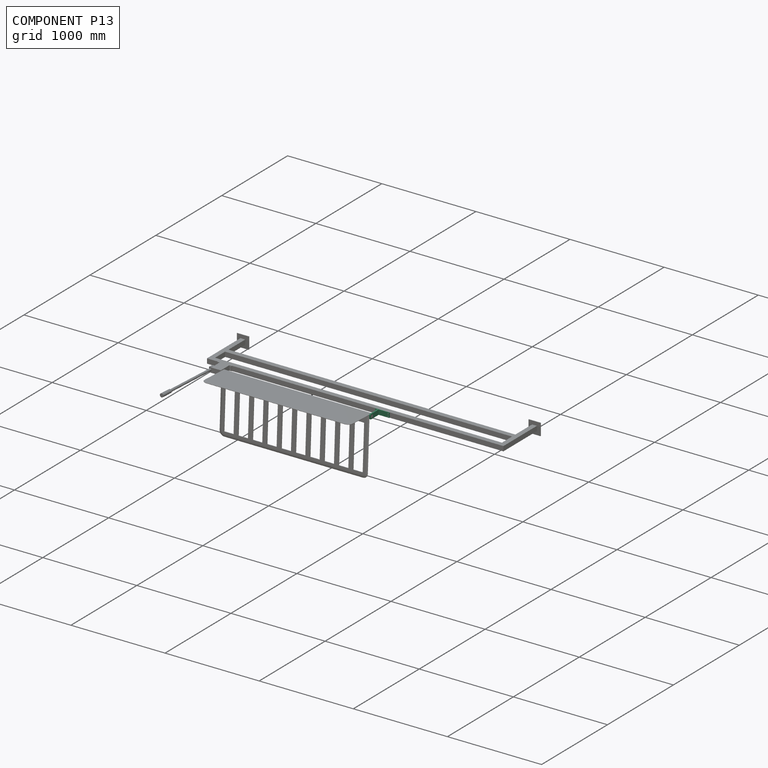
[diagram: component P13 — assembled]
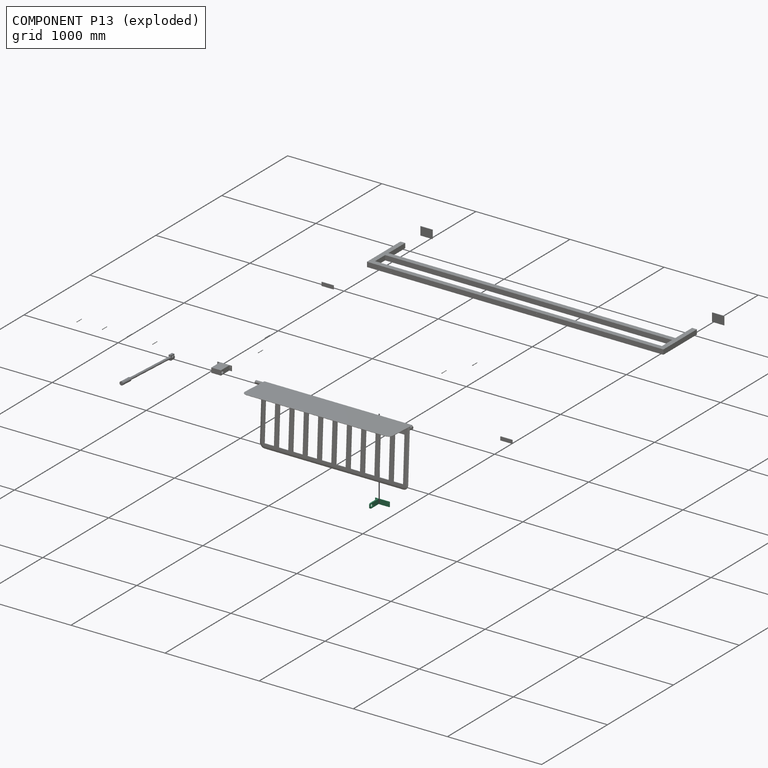
[diagram: component P13 — exploded]
COMPONENT P13 — recipe-attached (CADFS 00274263, mesh-verified: the recipe's output STEP matches this component's geometry to below the mesh-comparison resolution (tessellation chordal tolerance ~0.313 mm)).
Held by: CYLINDRICAL mate "Cylindrical 2" to P6; PLANAR mate "Planar 4" to P0; PLANAR mate "Planar 3" to P15; PLANAR mate "Planar 5" to P1; CYLINDRICAL mate "Cylindrical 1" to P6; PLANAR mate "Planar 2" to P4.
Construction recipe (FeatureScript — the CAD program that rebuilds this solid; sketch coordinates are in the units given by the * unit suffixes, e.g. mm):

FeatureScript 1511;
import(path : "onshape/std/geometry.fs", version : "1511.0");
import(path : "onshape/std/common.fs", version : "1511.0");
const mm = millimeter;
const VERTEX = EntityType.VERTEX;
const EDGE = EntityType.EDGE;
const FACE = EntityType.FACE;
const BODY = EntityType.BODY;
function v(x, y){return vector(x, y);}
function OD(order){return orderDisambiguation(order);}
function OSD(set){return originalSetDisambiguation(set);}
function TD(topology){return topologyDisambiguation(topology);}
function TDD(query){return trueDependencyDisambiguation(query);}
function sQuery(a, b, c) {return sketchEntityQuery(a, b, c);}

annotation { "Feature Type Name" : "Feature", "Feature Type Description" : "" }
export const myFeature = defineFeature(function(context is Context, id is Id, definition is map)
    precondition{}
    {
        {
            var Q0;
            Q0=qCreatedBy(makeId("Front.planeOp"),FACE);
            var sketch = newSketch(context, id + "F0", { "sketchPlane" : qUnion([Q0])});
            skLineSegment(sketch, "E0.bottom", {"start": v(0, 0) * mm, "end": v(152.4, 0) * mm});
            skLineSegment(sketch, "E0.top", {"start": v(0, 50.8) * mm, "end": v(152.4, 50.8) * mm});
            skLineSegment(sketch, "E0.left", {"start": v(0, 0) * mm, "end": v(0, 50.8) * mm});
            skLineSegment(sketch, "E0.right", {"start": v(152.4, 0) * mm, "end": v(152.4, 50.8) * mm});
            skSolve(sketch);
        }
        {
            var Q0;
            Q0=makeQuery(id+"F0.imprint","IMPRINT",FACE,{"disambiguationData":[TD([[makeQuery(id+"F0.imprint","IMPRINT",EDGE,{"derivedFrom":sQuery(id+"F0.wireOp",EDGE,"E0.bottom")}),1.0]])]});
            extrude(context, id + "F1", {"entities" : qUnion([Q0]), "depth" : 6.35 * mm});
        }
        {
            var Q0;
            Q0=makeQuery(id+"F1.opExtrude","CAP_FACE",FACE,{"disambiguationData":[OSD([sQuery(id+"F0.wireOp",EDGE,"E0.bottom"),sQuery(id+"F0.wireOp",EDGE,"E0.top"),sQuery(id+"F0.wireOp",EDGE,"E0.left"),sQuery(id+"F0.wireOp",EDGE,"E0.right")])],"isStart":false});
            var sketch = newSketch(context, id + "F2", { "sketchPlane" : qUnion([Q0])});
            skPoint(sketch, "E1", {"position": v(12.7, 38.1) * mm});
            skPoint(sketch, "E2", {"position": v(12.7, 12.7) * mm});
            skPoint(sketch, "E3", {"position": v(139.7, 38.1) * mm});
            skPoint(sketch, "E4", {"position": v(139.7, 12.7) * mm});
            skSolve(sketch);
        }
        {
            var Q0;
            Q0=sQuery(id+"F2.wireOp",VERTEX,"E1");
            var Q1;
            Q1=sQuery(id+"F2.wireOp",VERTEX,"E2");
            var Q2;
            Q2=sQuery(id+"F2.wireOp",VERTEX,"E3");
            var Q3;
            Q3=sQuery(id+"F2.wireOp",VERTEX,"E4");
            var Q4;
            Q4=makeQuery(id+"F1.opExtrude","SWEPT_BODY",BODY,{"disambiguationData":[OSD([sQuery(id+"F0.wireOp",EDGE,"E0.bottom"),sQuery(id+"F0.wireOp",EDGE,"E0.top"),sQuery(id+"F0.wireOp",EDGE,"E0.left"),sQuery(id+"F0.wireOp",EDGE,"E0.right")])]});
            hole(context, id + "F3", {"style" : HoleStyle.SIMPLE, "endStyle" : HoleEndStyle.THROUGH, "holeDiameter" : 6.35 * mm, "tappedDepth" : 12.7 * mm, "tapClearance" : 3, "locations" : qUnion([Q0, Q1, Q2, Q3]), "scope" : qUnion([Q4])});
        }
        {
            var Q0;
            Q0=makeQuery(id+"F1.opExtrude","CAP_FACE",FACE,{"disambiguationData":[OSD([sQuery(id+"F0.wireOp",EDGE,"E0.bottom"),sQuery(id+"F0.wireOp",EDGE,"E0.top"),sQuery(id+"F0.wireOp",EDGE,"E0.left"),sQuery(id+"F0.wireOp",EDGE,"E0.right")])],"isStart":false});
            var sketch = newSketch(context, id + "F4", { "sketchPlane" : qUnion([Q0])});
            skLineSegment(sketch, "E5.bottom", {"start": v(25.4, 50.8) * mm, "end": v(38.1, 50.8) * mm});
            skLineSegment(sketch, "E5.top", {"start": v(25.4, 0) * mm, "end": v(38.1, 0) * mm});
            skLineSegment(sketch, "E5.left", {"start": v(25.4, 50.8) * mm, "end": v(25.4, 0) * mm});
            skLineSegment(sketch, "E5.right", {"start": v(38.1, 50.8) * mm, "end": v(38.1, 0) * mm});
            skSolve(sketch);
        }
        {
            var Q0;
            Q0=makeQuery(id+"F4.imprint","IMPRINT",FACE,{"disambiguationData":[TD([[makeQuery(id+"F4.imprint","IMPRINT",EDGE,{"derivedFrom":sQuery(id+"F4.wireOp",EDGE,"E5.bottom")}),-1.0]])]});
            extrude(context, id + "F5", {"entities" : qUnion([Q0]), "operationType" : NewBodyOperationType.ADD, "depth" : 127 * mm});
        }
        {
            var Q0;
            Q0=makeQuery(id+"F5.opExtrude","CAP_EDGE",EDGE,{"disambiguationData":[OSD([sQuery(id+"F4.wireOp",EDGE,"E5.top")])],"isStart":false});
            var Q1;
            Q1=makeQuery(id+"F5.opExtrude","CAP_EDGE",EDGE,{"disambiguationData":[OSD([sQuery(id+"F4.wireOp",EDGE,"E5.bottom")])],"isStart":false});
            fillet(context, id + "F6", {"entities" : qUnion([Q0, Q1]), "radius" : 12.7 * mm, "tangentPropagation" : true, "allowEdgeOverflow" : false});
        }
        {
            var Q0;
            Q0=makeQuery(id+"F5.opExtrude","SWEPT_FACE",FACE,{"disambiguationData":[OSD([sQuery(id+"F4.wireOp",EDGE,"E5.right")])]});
            var sketch = newSketch(context, id + "F7", { "sketchPlane" : qUnion([Q0])});
            skPoint(sketch, "E6", {"position": v(-107.95, 25.4) * mm});
            skSolve(sketch);
        }
        {
            var Q0;
            Q0=sQuery(id+"F7.wireOp",VERTEX,"E6");
            var Q1;
            Q1=makeQuery(id+"F1.opExtrude","SWEPT_BODY",BODY,{"disambiguationData":[OSD([sQuery(id+"F0.wireOp",EDGE,"E0.bottom"),sQuery(id+"F0.wireOp",EDGE,"E0.top"),sQuery(id+"F0.wireOp",EDGE,"E0.left"),sQuery(id+"F0.wireOp",EDGE,"E0.right")])]});
            hole(context, id + "F8", {"style" : HoleStyle.SIMPLE, "endStyle" : HoleEndStyle.THROUGH, "holeDiameter" : 31.75 * mm, "tappedDepth" : 12.7 * mm, "tapClearance" : 3, "locations" : qUnion([Q0]), "scope" : qUnion([Q1])});
        }
    });
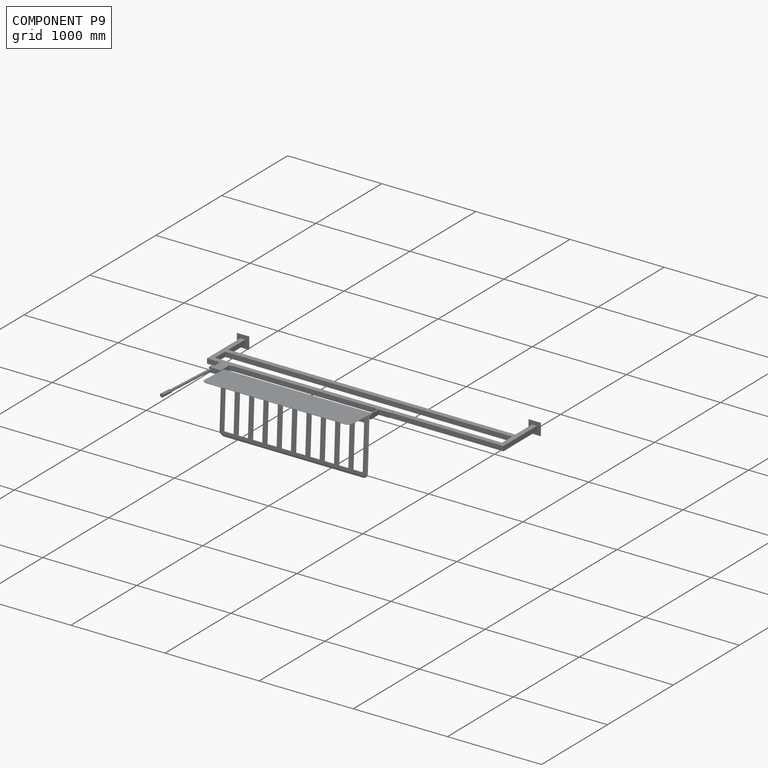
[diagram: component P9 — assembled]
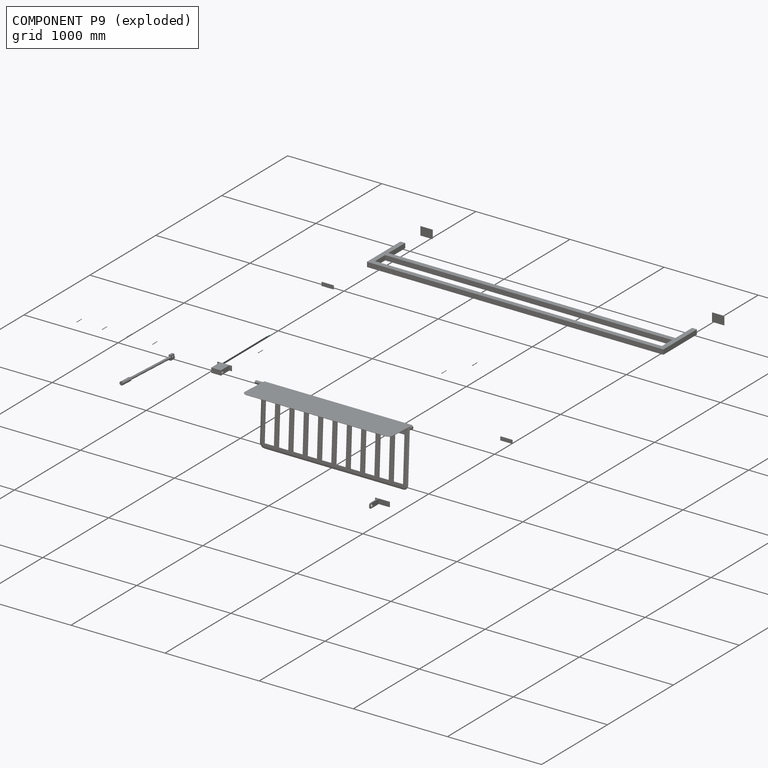
[diagram: component P9 — exploded]
COMPONENT P9 — same part as P0 (CADFS 00274267); its construction recipe is shown at P0.
Held by: PLANAR mate "Planar 7" to P8.
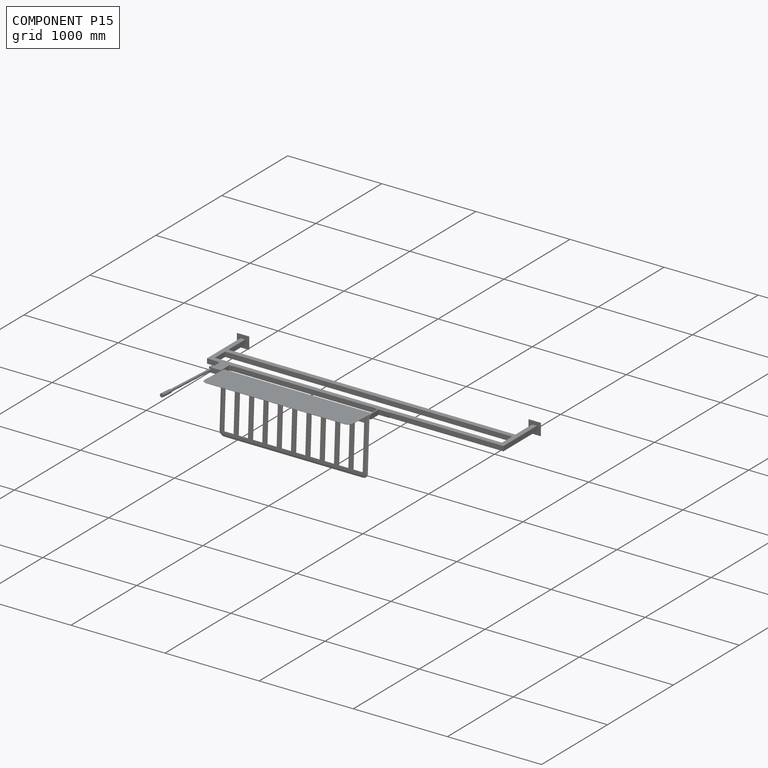
[diagram: component P15 — assembled]
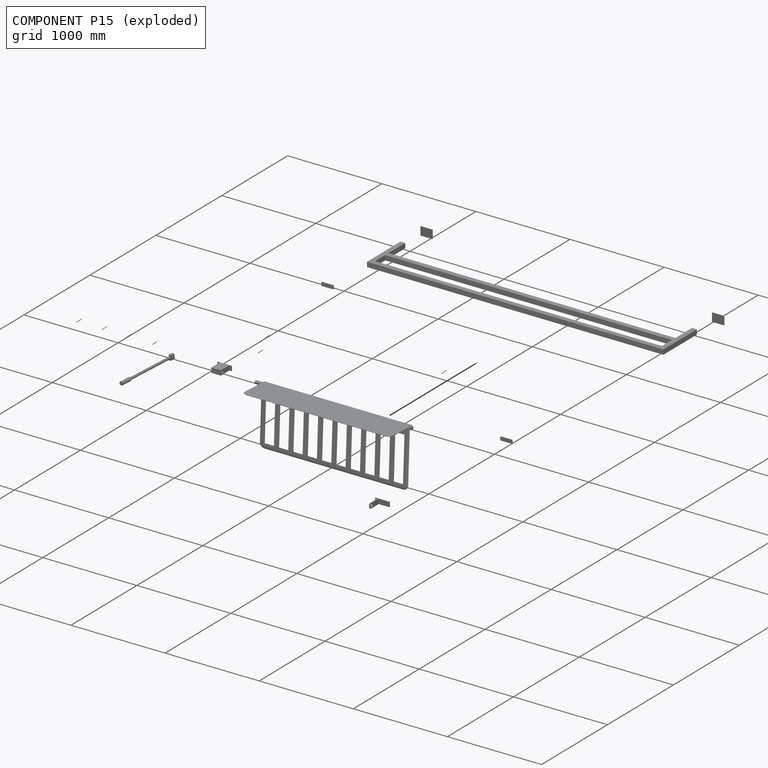
[diagram: component P15 — exploded]
COMPONENT P15 — same part as P0 (CADFS 00274267); its construction recipe is shown at P0.
Held by: PLANAR mate "Planar 3" to P13.
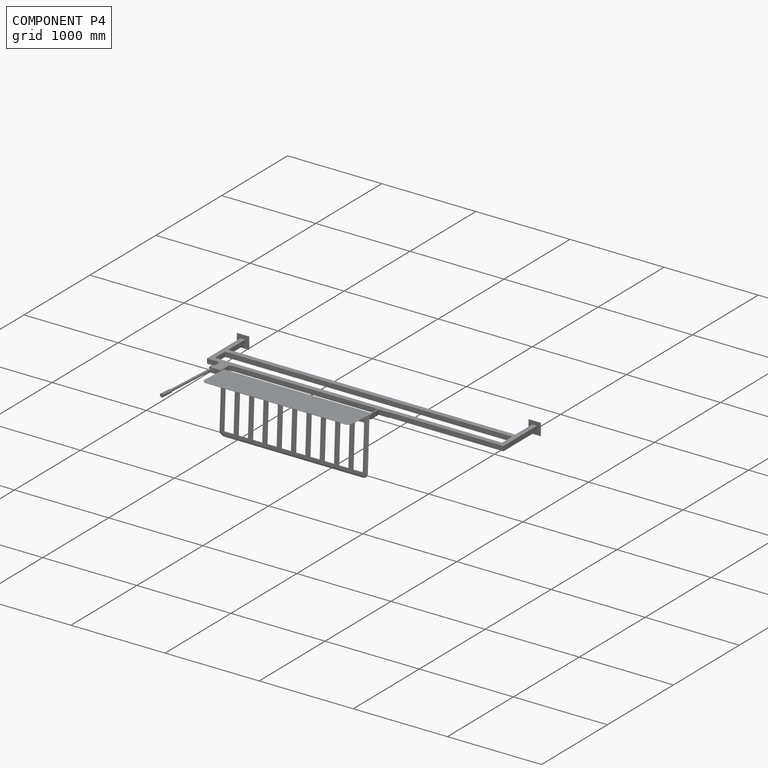
[diagram: component P4 — assembled]
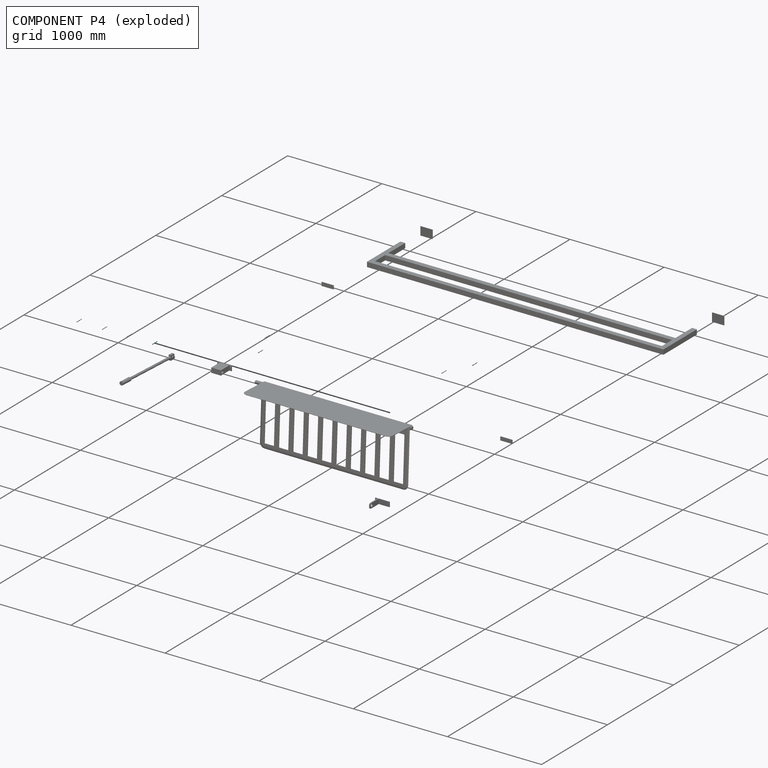
[diagram: component P4 — exploded]
COMPONENT P4 — same part as P0 (CADFS 00274267); its construction recipe is shown at P0.
Held by: PLANAR mate "Planar 2" to P13.
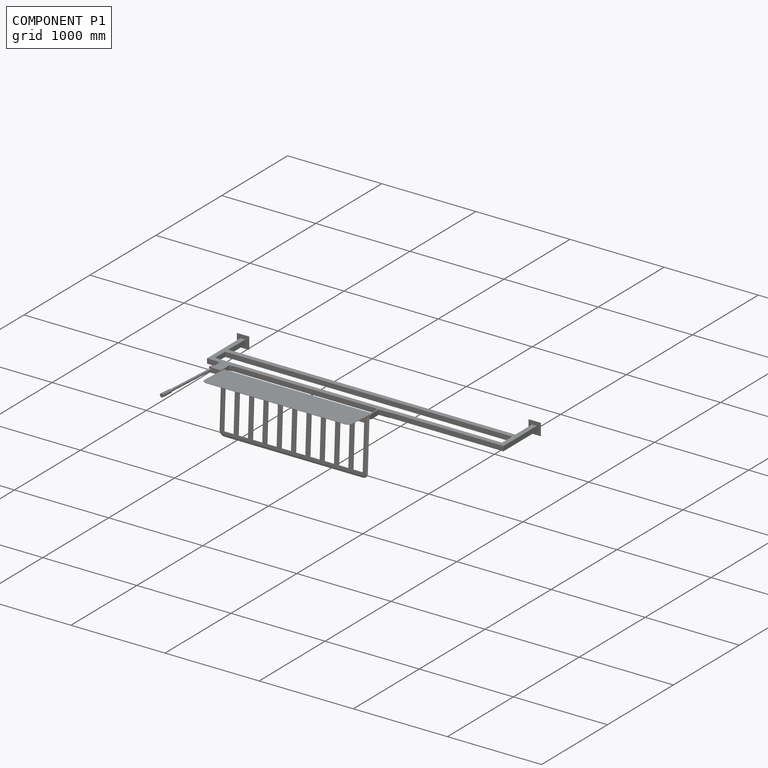
[diagram: component P1 — assembled]
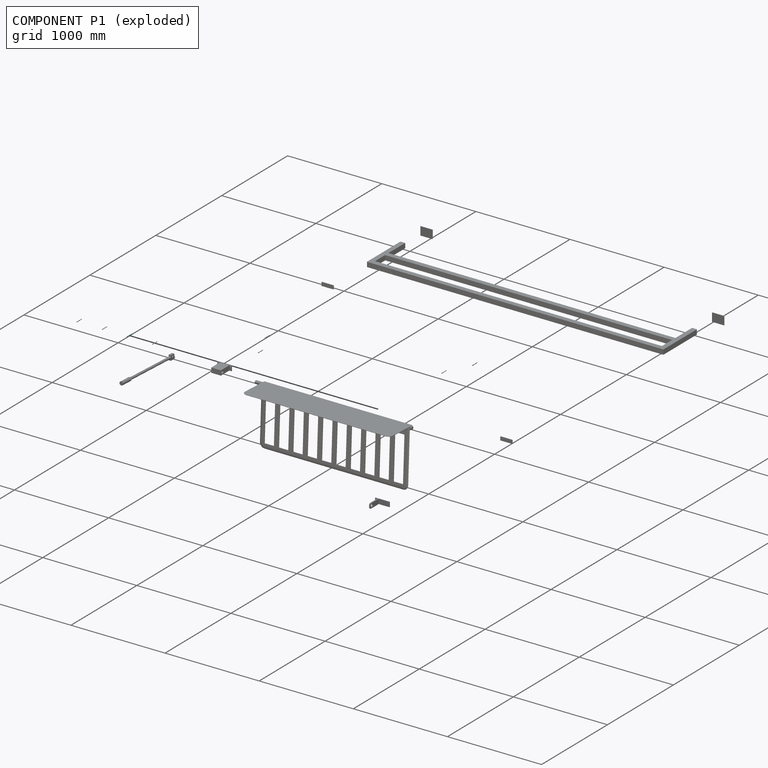
[diagram: component P1 — exploded]
COMPONENT P1 — same part as P0 (CADFS 00274267); its construction recipe is shown at P0.
Held by: PLANAR mate "Planar 5" to P13.
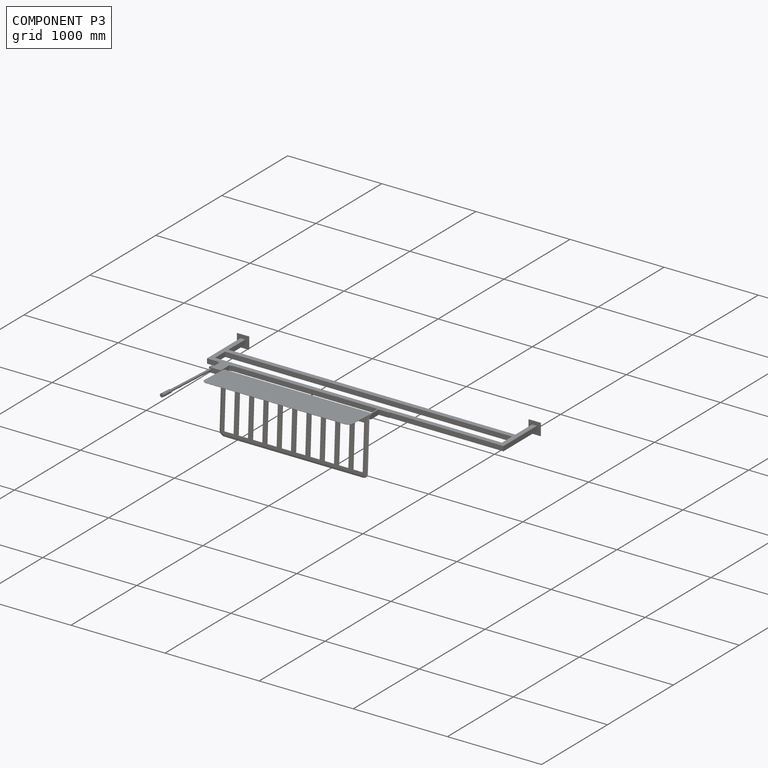
[diagram: component P3 — assembled]
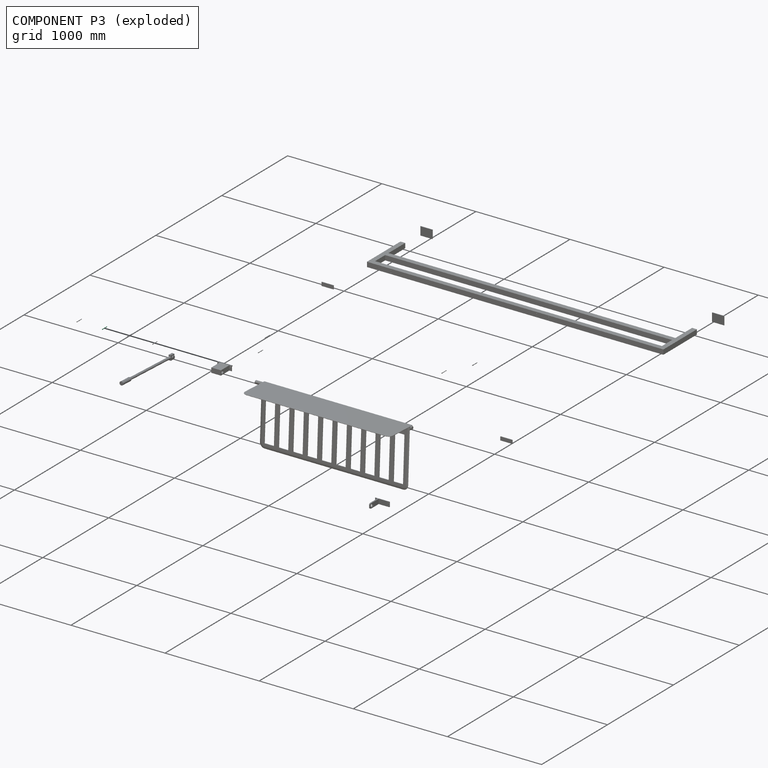
[diagram: component P3 — exploded]
COMPONENT P3 — same part as P0 (CADFS 00274267); its construction recipe is shown at P0.
Held by: PLANAR mate "Planar 9" to P8.
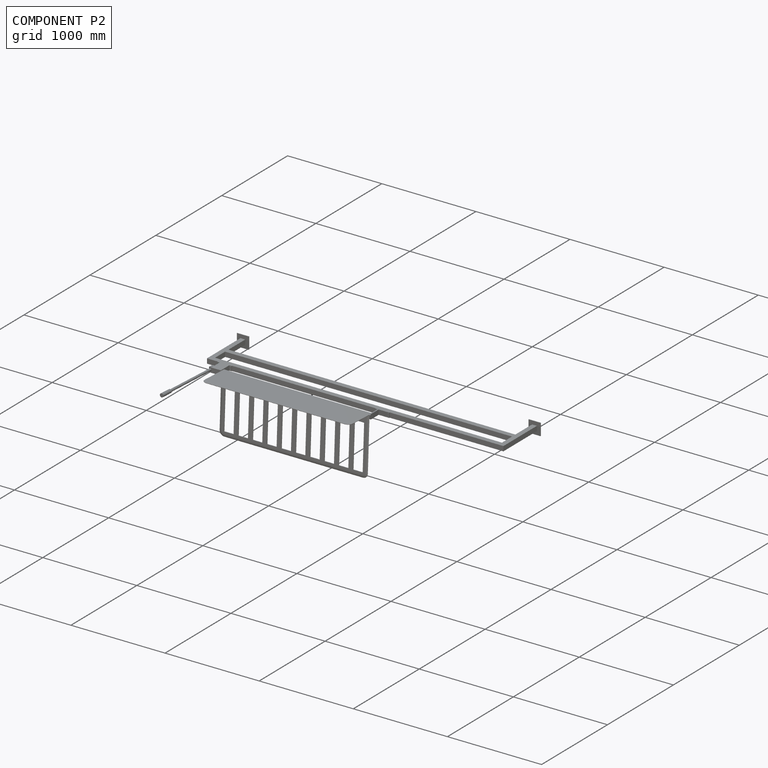
[diagram: component P2 — assembled]
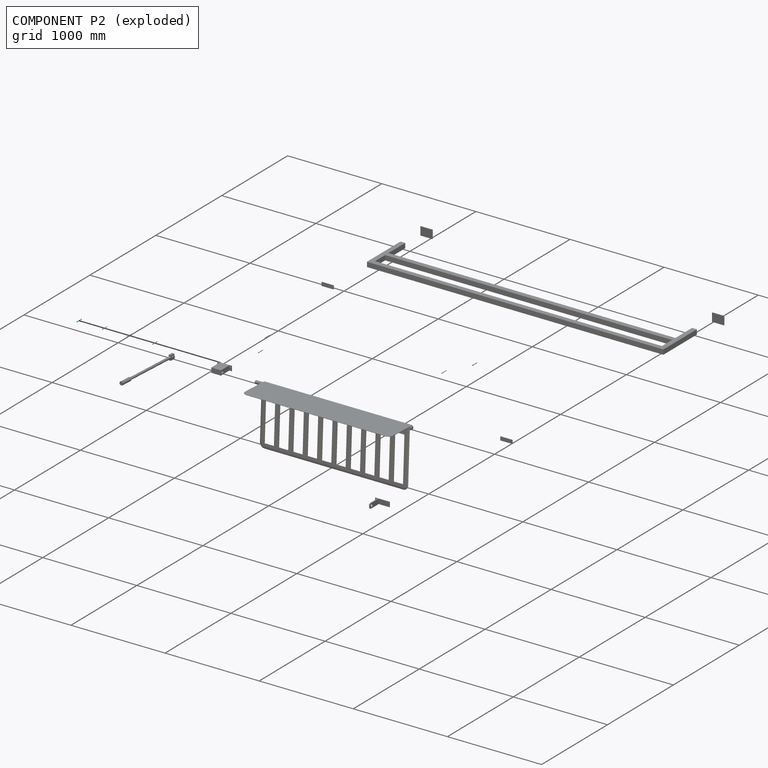
[diagram: component P2 — exploded]
COMPONENT P2 — same part as P0 (CADFS 00274267); its construction recipe is shown at P0.
Held by: PLANAR mate "Planar 8" to P8.
